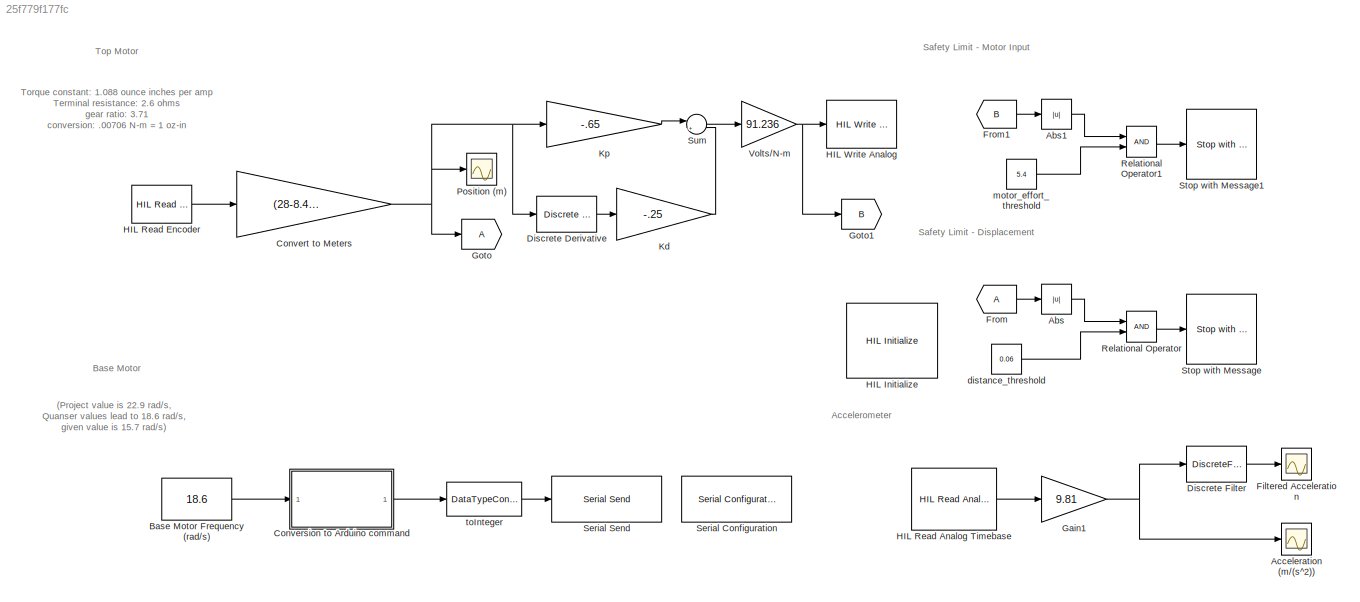
MODEL slx_25f779f177fc
KIND model
CONFIG AbsTol = auto
CONFIG FixedStep = 0.002
CONFIG MaxStep = auto
CONFIG MinStep = auto
CONFIG RelTol = 1e-3
CONFIG SampleTimeConstraint = Unconstrained
CONFIG Solver = FixedStepDiscrete
CONFIG SolverMode = Auto
CONFIG SolverName = FixedStepDiscrete
CONFIG StartTime = 0.0
CONFIG StopTime = inf
BLOCK [Abs] Abs
  SaturateOnIntegerOverflow = off
BLOCK [Abs] Abs1
  SaturateOnIntegerOverflow = off
BLOCK [Scope] Acceleration (m//(s^2))
  Ports = [1]
  ScopeSpecificationString = Simulink.scopes.TimeScopeBlockCfg('CurrentConfiguration', extmgr.ConfigurationSet(extmgr.Configuration('Core','General UI',true),extmgr.Configuration('Core','Source UI',true),extmgr.Configuration('Sources','WiredSimulink',true,'DataLoggingVariableName','ScopeData1'),extmgr.Configuration('Visuals','Time Domain',true,'SerializedDisplays',{struct('MinYLimReal','-6.08653','MaxYLimReal','5.46979','YLab...<+1458ch>
BLOCK [Constant] Base Motor Frequency (rad//s)
  Commented = on
  SampleTime = 3
  Value = 18.6
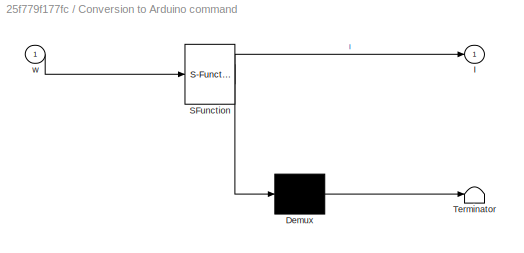
BLOCK [SubSystem] Conversion to Arduino command
  Commented = on
  ErrorFcn = Stateflow.Translate.translate
  PermitHierarchicalResolution = ExplicitOnly
  Ports = [1, 1]
  RequestExecContextInheritance = off
  SFBlockType = MATLAB Function
  TreatAsAtomicUnit = on
  Variant = off
BLOCK [Demux] Conversion to Arduino command/ Demux 
  Outputs = 1
  Ports = [1, 1]
BLOCK [S-Function] Conversion to Arduino command/ SFunction 
  EnableBusSupport = on
  FunctionName = sf_sfun
  PortCounts = [1 2]
  Ports = [1, 2]
  SFunctionDeploymentMode = off
  Tag = Stateflow S-Function Earthquake_Stabilizer 2
BLOCK [Terminator] Conversion to Arduino command/ Terminator 
BLOCK [Outport] Conversion to Arduino command/I
  IconDisplay = Port number
BLOCK [Inport] Conversion to Arduino command/w
  IconDisplay = Port number
BLOCK [Gain] Convert to Meters
  Gain = (28-8.425)/(8269)/100
  OutDataTypeStr = Inherit: Inherit via internal rule
  ParamDataTypeStr = Inherit: Inherit via internal rule
  SaturateOnIntegerOverflow = off
BLOCK [Reference] Discrete Derivative  REF=simulink/Discrete/Discrete Derivative
  Ports = [1, 1]
  SourceBlock = simulink/Discrete/Discrete Derivative
  SourceType = Discrete Derivative
BLOCK [DiscreteFilter] Discrete Filter
  Denominator = [1]
  InputPortMap = u0
  Numerator = [1 .1]
  Ports = [1, 1]
BLOCK [Scope] Filtered Acceleration
  Ports = [1]
  ScopeSpecificationString = Simulink.scopes.TimeScopeBlockCfg('CurrentConfiguration', extmgr.ConfigurationSet(extmgr.Configuration('Core','General UI',true),extmgr.Configuration('Core','Source UI',true),extmgr.Configuration('Sources','WiredSimulink',true,'DataLoggingVariableName','ScopeData1'),extmgr.Configuration('Visuals','Time Domain',true,'SerializedDisplays',{struct('MinYLimReal','-2.12445','MaxYLimReal','1.50112','YLab...<+1445ch>
BLOCK [From] From
BLOCK [From] From1
  GotoTag = B
BLOCK [Gain] Gain1
  Gain = 9.81
  OutDataTypeStr = Inherit: Inherit via internal rule
  ParamDataTypeStr = Inherit: Inherit via internal rule
  SaturateOnIntegerOverflow = off
BLOCK [Goto] Goto
BLOCK [Goto] Goto1
  GotoTag = B
BLOCK [Reference] HIL Initialize  REF=quarc_library/Data Acquisition/Generic/Configuration/HIL Initialize
  AttributesFormatString = %<object_name> (%<board_type>-%<board_number>)
  Ports = []
  Priority = -99
  SourceBlock = quarc_library/Data Acquisition/Generic/Configuration/HIL Initialize
  SourceType = HIL Initialize
  UserDataPersistent = on
BLOCK [Reference] HIL Read Analog Timebase  REF=quarc_library/Data Acquisition/Generic/Timebases/HIL Read Analog
Timebase
  AttributesFormatString = (%<object_name>)
  Ports = [0, 1]
  SourceBlock = quarc_library/Data Acquisition/Generic/Timebases/HIL Read Analog\nTimebase
  SourceType = HIL Read Analog Timebase
  UserDataPersistent = on
BLOCK [Reference] HIL Read Encoder  REF=quarc_library/Data Acquisition/Generic/Immediate I//O/HIL Read Encoder
  AttributesFormatString = (%<object_name>)
  Ports = [0, 1]
  SourceBlock = quarc_library/Data Acquisition/Generic/Immediate I//O/HIL Read Encoder
  SourceType = HIL Read Encoder
  UserDataPersistent = on
BLOCK [Reference] HIL Write Analog  REF=quarc_library/Data Acquisition/Generic/Immediate I//O/HIL Write Analog
  AttributesFormatString = (%<object_name>)
  Ports = [1]
  SourceBlock = quarc_library/Data Acquisition/Generic/Immediate I//O/HIL Write Analog
  SourceType = HIL Write Analog
  UserDataPersistent = on
BLOCK [Gain] Kd
  Gain = -.25
  OutDataTypeStr = Inherit: Inherit via internal rule
  ParamDataTypeStr = Inherit: Inherit via internal rule
  SaturateOnIntegerOverflow = off
BLOCK [Gain] Kp
  Gain = -.65
  OutDataTypeStr = Inherit: Inherit via internal rule
  ParamDataTypeStr = Inherit: Inherit via internal rule
  SaturateOnIntegerOverflow = off
BLOCK [Scope] Position (m) 
  Ports = [1]
  ScopeSpecificationString = Simulink.scopes.TimeScopeBlockCfg('CurrentConfiguration', extmgr.ConfigurationSet(extmgr.Configuration('Core','General UI',true),extmgr.Configuration('Core','Source UI',true),extmgr.Configuration('Sources','WiredSimulink',true,'DataLoggingVariableName','ScopeData2'),extmgr.Configuration('Visuals','Time Domain',true,'SerializedDisplays',{struct('MinYLimReal','-0.04826','MaxYLimReal','0.0651','YLabe...<+1453ch>
BLOCK [RelationalOperator] Relational Operator
  InputSameDT = off
  OutDataTypeStr = boolean
  Ports = [2, 1]
BLOCK [RelationalOperator] Relational Operator1
  InputSameDT = off
  OutDataTypeStr = boolean
  Ports = [2, 1]
BLOCK [Reference] Serial Configuration  REF=instrumentlib/Serial Configuration
  Commented = on
  Ports = []
  Priority = -200000
  SourceBlock = instrumentlib/Serial Configuration
  SourceType = Serial Configuration
BLOCK [Reference] Serial Send  REF=instrumentlib/Serial Send
  Commented = on
  Ports = [1]
  SourceBlock = instrumentlib/Serial Send
  SourceType = Serial Send
BLOCK [Reference] Stop with Message  REF=quarc_library/Sinks/Error Handling/Stop with Message
  AttributesFormatString = "%<message>"
  Ports = [1]
  SourceBlock = quarc_library/Sinks/Error Handling/Stop with Message
  SourceType = Stop with Message
BLOCK [Reference] Stop with Message1  REF=quarc_library/Sinks/Error Handling/Stop with Message
  AttributesFormatString = "%<message>"
  Ports = [1]
  SourceBlock = quarc_library/Sinks/Error Handling/Stop with Message
  SourceType = Stop with Message
BLOCK [Sum] Sum
  IconShape = round
  InputSameDT = off
  Inputs = |++
  OutDataTypeStr = Inherit: Inherit via internal rule
  Ports = [2, 1]
  SaturateOnIntegerOverflow = off
BLOCK [Gain] Volts//N-m
  Gain = 91.236
  OutDataTypeStr = Inherit: Inherit via internal rule
  ParamDataTypeStr = Inherit: Inherit via internal rule
  SaturateOnIntegerOverflow = off
BLOCK [Constant] distance_threshold
  Value = 0.06
BLOCK [Constant] motor_effort_threshold
  Value = 5.4
BLOCK [DataTypeConversion] toInteger
  Commented = on
  OutDataTypeStr = uint16
  RndMeth = Nearest
  SaturateOnIntegerOverflow = off
ANNOTATION (root): (Project value is 22.9 rad/s, Quanser values lead to 18.6 rad/s, given value is 15.7 rad/s)
ANNOTATION (root): Safety Limit - Displacement
ANNOTATION (root): Safety Limit - Motor Input
ANNOTATION (root): Top Motor
ANNOTATION (root): Accelerometer
ANNOTATION (root): Base Motor
ANNOTATION (root): Torque constant: 1.088 ounce inches per amp Terminal resistance: 2.6 ohms gear ratio: 3.71 conversion: .00706 N-m = 1 oz-in
LINE Abs1:1 -> Relational Operator1:1
LINE Abs:1 -> Relational Operator:1
LINE Base Motor Frequency (rad//s):1 -> Conversion to Arduino command:1
LINE Conversion to Arduino command:1 -> toInteger:1
NET Convert to Meters:1 -> Discrete Derivative:1, Goto:1, Kp:1, Position (m) :1
LINE Discrete Derivative:1 -> Kd:1
LINE Discrete Filter:1 -> Filtered Acceleration:1
LINE From1:1 -> Abs1:1
LINE From:1 -> Abs:1
NET Gain1:1 -> Acceleration (m//(s^2)):1, Discrete Filter:1
LINE HIL Read Analog Timebase:1 -> Gain1:1
LINE HIL Read Encoder:1 -> Convert to Meters:1
LINE Kd:1 -> Sum:2
LINE Kp:1 -> Sum:1
LINE Relational Operator1:1 -> Stop with Message1:1
LINE Relational Operator:1 -> Stop with Message:1
LINE Sum:1 -> Volts//N-m:1
NET Volts//N-m:1 -> Goto1:1, HIL Write Analog:1
LINE distance_threshold:1 -> Relational Operator:2
LINE motor_effort_threshold:1 -> Relational Operator1:2
LINE toInteger:1 -> Serial Send:1
note: NET lines group one-source signal fan-out (src -> all destinations, sorted); 1:1 wires keep LINE
CHART Conversion to Arduino command states=1 transitions=1
  STATE_LABEL 'eML_blk_kernel()'
  STATE_LABEL 'SCRIPT:\nfunction I = RadPerSec2Integer(w)\n%#codegen\n\nrpm_max = 251;\nf_max = rpm_max/60;\nw_max = 2*pi*f_max;\n\nI = round( w/w_max * 255 );'
